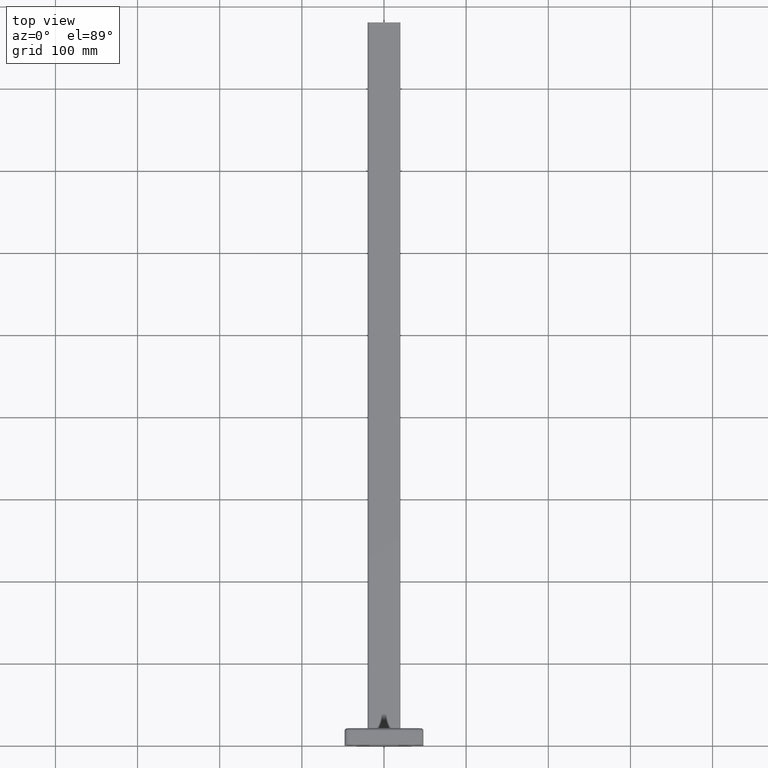
[diagram: clean part render]
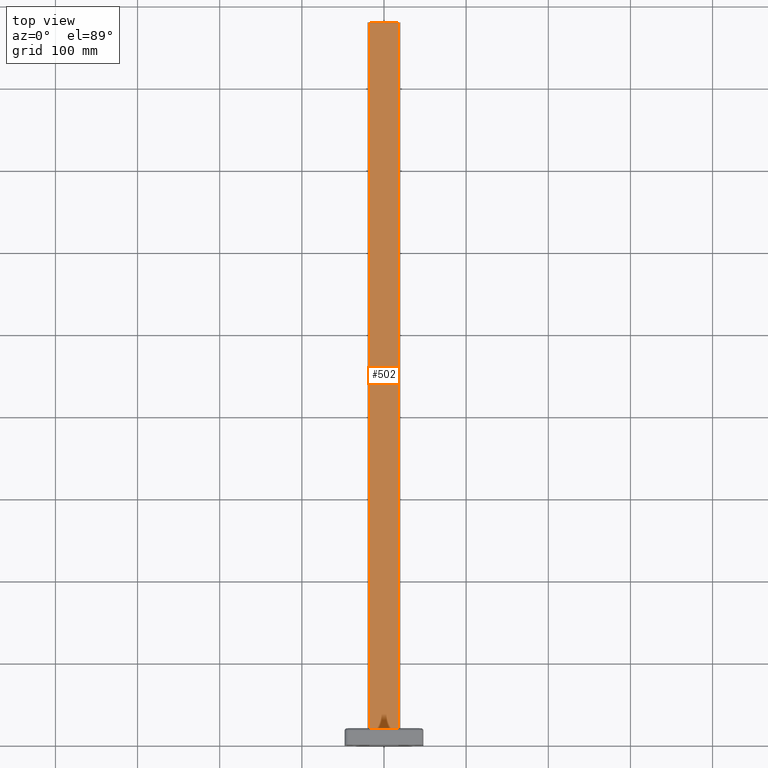
[diagram: same view with one face highlighted and labeled with its STEP entity id]
A machine part, top view. The second image highlights one B-rep face of the part: STEP entity #502.
In plain terms, the highlighted planar face has unit normal (0, 0, -1).
Its self-contained STEP definition (entity closure, byte-faithful):
#1 = CARTESIAN_POINT ( 'NONE',  ( 17.00000000000000700, 0.0000000000000000000, 19.99999999999999600 ) ) ;
#75 = EDGE_LOOP ( 'NONE', ( #368, #2196, #2262, #613 ) ) ;
#92 = VECTOR ( 'NONE', #3617, 1000.000000000000000 ) ;
#368 = ORIENTED_EDGE ( 'NONE', *, *, #3197, .F. ) ;
#502 = ADVANCED_FACE ( 'NONE', ( #2902 ), #839, .F. ) ;
#536 = CARTESIAN_POINT ( 'NONE',  ( -19.99999999999999600, 880.0000000000000000, 19.99999999999999600 ) ) ;
#550 = DIRECTION ( 'NONE',  ( 0.0000000000000000000, 0.0000000000000000000, -1.000000000000000000 ) ) ;
#579 = DIRECTION ( 'NONE',  ( -0.0000000000000000000, 1.000000000000000000, -0.0000000000000000000 ) ) ;
#613 = ORIENTED_EDGE ( 'NONE', *, *, #2768, .T. ) ;
#839 = PLANE ( 'NONE',  #2166 ) ;
#1002 = CARTESIAN_POINT ( 'NONE',  ( 17.00000000000000700, 880.0000000000000000, 19.99999999999999600 ) ) ;
#1068 = LINE ( 'NONE', #3101, #1687 ) ;
#1434 = DIRECTION ( 'NONE',  ( 1.000000000000000000, 0.0000000000000000000, 0.0000000000000000000 ) ) ;
#1589 = CARTESIAN_POINT ( 'NONE',  ( -19.99999999999999600, 0.0000000000000000000, 19.99999999999999600 ) ) ;
#1687 = VECTOR ( 'NONE', #1434, 1000.000000000000000 ) ;
#1738 = CARTESIAN_POINT ( 'NONE',  ( -16.99999999999999600, 880.0000000000000000, 19.99999999999999600 ) ) ;
#1754 = VERTEX_POINT ( 'NONE', #1002 ) ;
#1772 = EDGE_CURVE ( 'NONE', #2217, #2112, #3287, .T. ) ;
#1804 = EDGE_CURVE ( 'NONE', #2112, #1988, #2095, .T. ) ;
#1988 = VERTEX_POINT ( 'NONE', #1 ) ;
#2026 = CARTESIAN_POINT ( 'NONE',  ( -16.99999999999999600, 0.0000000000000000000, 19.99999999999999600 ) ) ;
#2044 = CARTESIAN_POINT ( 'NONE',  ( 17.00000000000000700, 880.0000000000000000, 19.99999999999999600 ) ) ;
#2095 = LINE ( 'NONE', #1589, #92 ) ;
#2112 = VERTEX_POINT ( 'NONE', #2026 ) ;
#2129 = DIRECTION ( 'NONE',  ( 0.0000000000000000000, -1.000000000000000000, 0.0000000000000000000 ) ) ;
#2166 = AXIS2_PLACEMENT_3D ( 'NONE', #536, #550, #3093 ) ;
#2172 = CARTESIAN_POINT ( 'NONE',  ( -16.99999999999999600, 880.0000000000000000, 19.99999999999999600 ) ) ;
#2196 = ORIENTED_EDGE ( 'NONE', *, *, #1772, .T. ) ;
#2217 = VERTEX_POINT ( 'NONE', #1738 ) ;
#2262 = ORIENTED_EDGE ( 'NONE', *, *, #1804, .T. ) ;
#2438 = VECTOR ( 'NONE', #579, 1000.000000000000000 ) ;
#2573 = LINE ( 'NONE', #2044, #2438 ) ;
#2768 = EDGE_CURVE ( 'NONE', #1988, #1754, #2573, .T. ) ;
#2902 = FACE_OUTER_BOUND ( 'NONE', #75, .T. ) ;
#3093 = DIRECTION ( 'NONE',  ( -1.000000000000000000, 0.0000000000000000000, -0.0000000000000000000 ) ) ;
#3101 = CARTESIAN_POINT ( 'NONE',  ( -19.99999999999999600, 880.0000000000000000, 19.99999999999999600 ) ) ;
#3197 = EDGE_CURVE ( 'NONE', #2217, #1754, #1068, .T. ) ;
#3210 = VECTOR ( 'NONE', #2129, 1000.000000000000000 ) ;
#3287 = LINE ( 'NONE', #2172, #3210 ) ;
#3617 = DIRECTION ( 'NONE',  ( 1.000000000000000000, 0.0000000000000000000, 0.0000000000000000000 ) ) ;